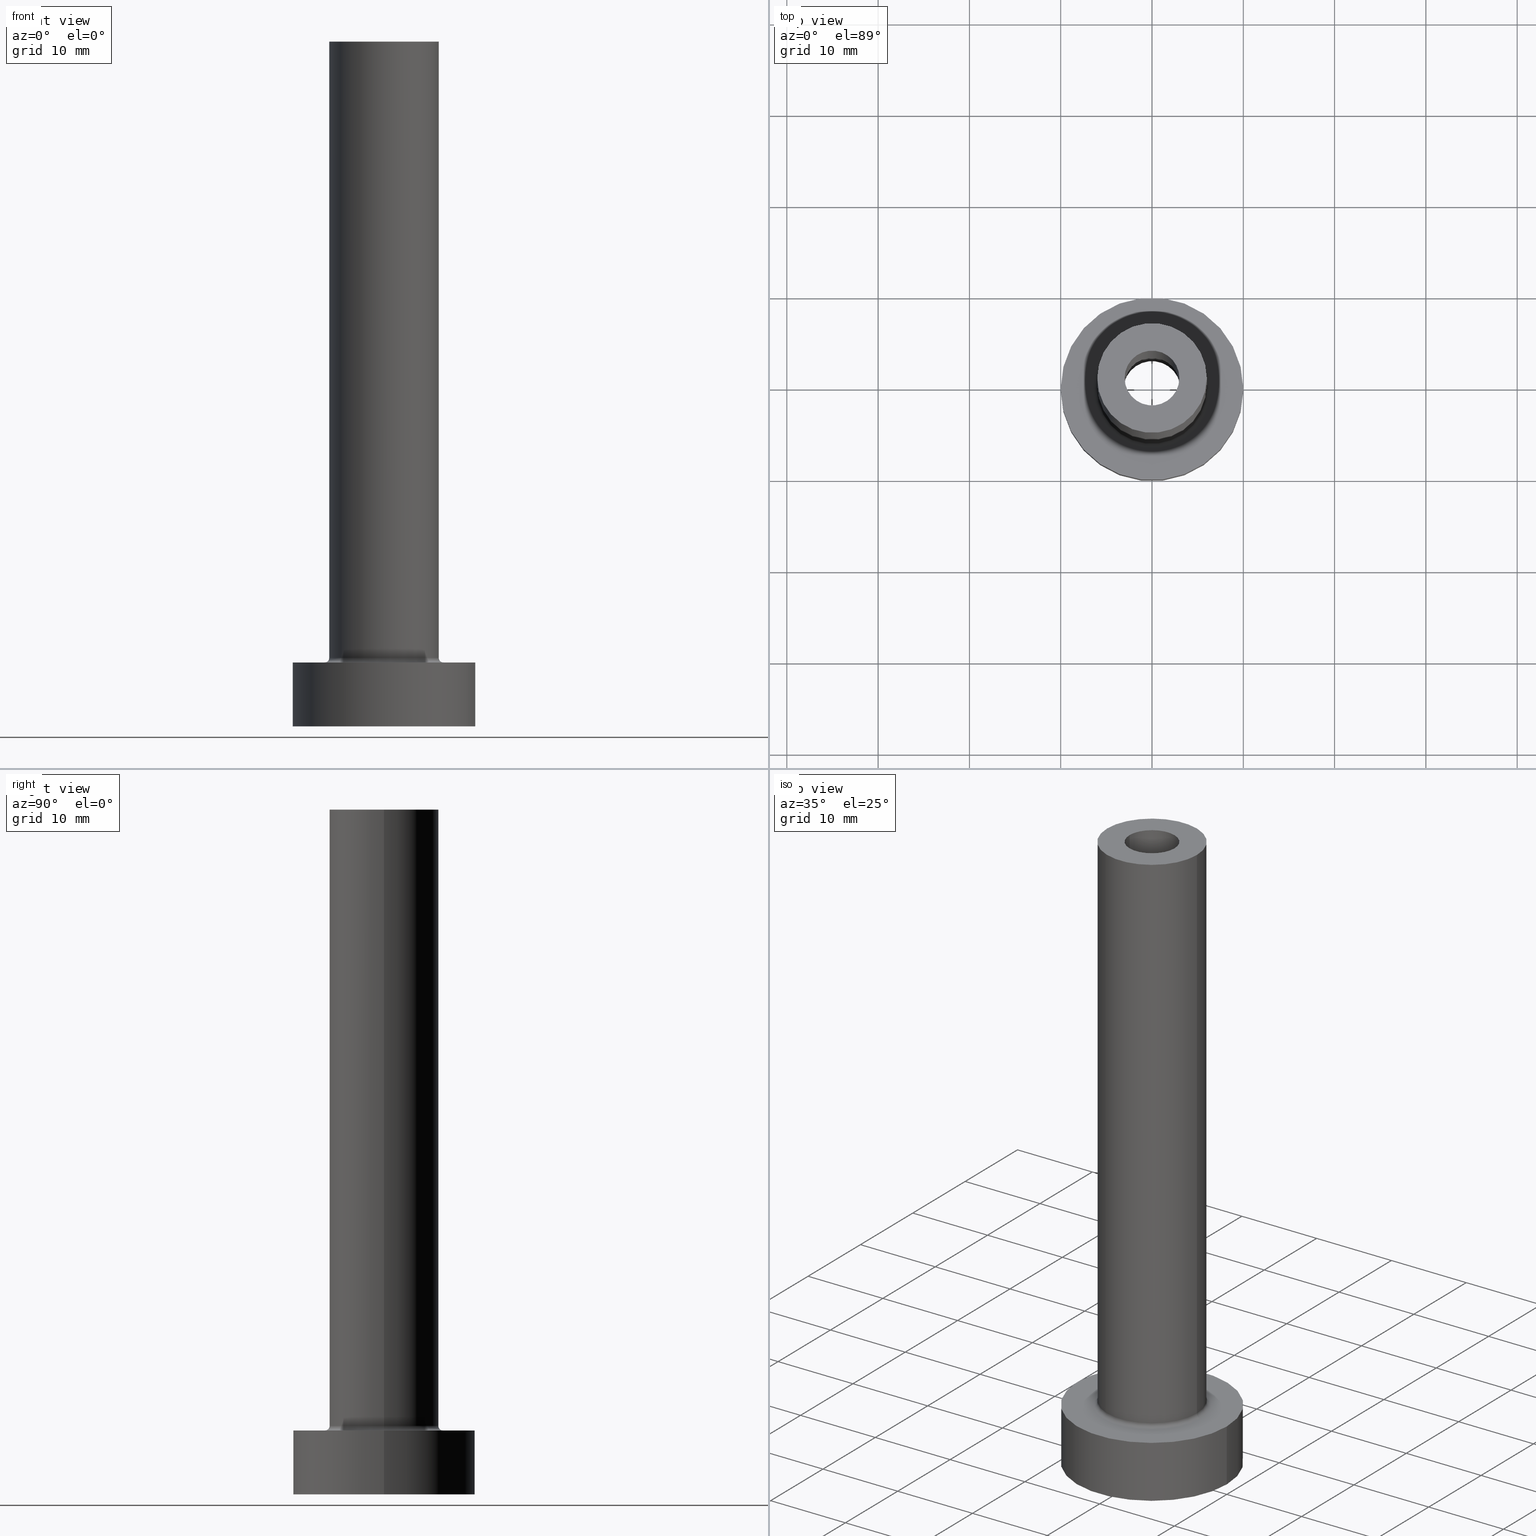
[diagram: canonical four-view strip — front | top / right | iso, engineering-drawing reading convention]
A machine part, canonical four-view strip (front | top / right | iso — engineering-drawing reading convention). The complete STEP part file that produces these views, byte-faithful:
ISO-10303-21;
HEADER;
FILE_DESCRIPTION (( 'STEP AP203' ),
    '1' );
FILE_NAME ('812e.STEP',
    '2023-02-13T15:03:09',
    ( '' ),
    ( '' ),
    'SwSTEP 2.0',
    'SolidWorks 2019',
    '' );
FILE_SCHEMA (( 'CONFIG_CONTROL_DESIGN' ));
ENDSEC;

DATA;
#1 = FACE_BOUND ( 'NONE', #125, .T. ) ;
#2 = APPLICATION_CONTEXT ( 'configuration controlled 3d designs of mechanical parts and assemblies' ) ;
#3 = ORIENTED_EDGE ( 'NONE', *, *, #172, .F. ) ;
#4 = CIRCLE ( 'NONE', #148, 3.000000000000000444 ) ;
#5 = PERSON_AND_ORGANIZATION ( #104, #113 ) ;
#6 = AXIS2_PLACEMENT_3D ( 'NONE', #185, #278, #353 ) ;
#7 = DIRECTION ( 'NONE',  ( 1.000000000000000000, 0.000000000000000000, 0.000000000000000000 ) ) ;
#8 = ORIENTED_EDGE ( 'NONE', *, *, #426, .F. ) ;
#9 = CARTESIAN_POINT ( 'NONE',  ( -3.000000000000000444, 0.000000000000000000, 75.00000000000001421 ) ) ;
#10 = VERTEX_POINT ( 'NONE', #452 ) ;
#11 = DIRECTION ( 'NONE',  ( 0.000000000000000000, 0.000000000000000000, 1.000000000000000000 ) ) ;
#12 = DIRECTION ( 'NONE',  ( 0.000000000000000000, 0.000000000000000000, -1.000000000000000000 ) ) ;
#13 = VERTEX_POINT ( 'NONE', #144 ) ;
#14 = CARTESIAN_POINT ( 'NONE',  ( 0.000000000000000000, 0.000000000000000000, 0.000000000000000000 ) ) ;
#15 = DIRECTION ( 'NONE',  ( 1.000000000000000000, 0.000000000000000000, 0.000000000000000000 ) ) ;
#16 = CARTESIAN_POINT ( 'NONE',  ( 0.000000000000000000, 0.000000000000000000, 30.00000000000001421 ) ) ;
#17 = AXIS2_PLACEMENT_3D ( 'NONE', #445, #27, #253 ) ;
#18 = CIRCLE ( 'NONE', #361, 3.150000000000000355 ) ;
#19 = CARTESIAN_POINT ( 'NONE',  ( 0.000000000000000000, 0.000000000000000000, 7.000000000000000000 ) ) ;
#20 = ORIENTED_EDGE ( 'NONE', *, *, #264, .T. ) ;
#21 = DIRECTION ( 'NONE',  ( 0.000000000000000000, 0.000000000000000000, 1.000000000000000000 ) ) ;
#22 = DIRECTION ( 'NONE',  ( -1.000000000000000000, 0.000000000000000000, 0.000000000000000000 ) ) ;
#23 = ADVANCED_FACE ( 'NONE', ( #421, #180 ), #105, .T. ) ;
#24 = PERSON_AND_ORGANIZATION ( #104, #113 ) ;
#25 = CIRCLE ( 'NONE', #429, 3.150000000000000355 ) ;
#26 = PERSON_AND_ORGANIZATION ( #104, #113 ) ;
#27 = DIRECTION ( 'NONE',  ( 0.000000000000000000, 0.000000000000000000, 1.000000000000000000 ) ) ;
#28 = ORIENTED_EDGE ( 'NONE', *, *, #197, .T. ) ;
#29 = CARTESIAN_POINT ( 'NONE',  ( 0.000000000000000000, 0.000000000000000000, 0.000000000000000000 ) ) ;
#30 = EDGE_CURVE ( 'NONE', #286, #57, #348, .T. ) ;
#31 = ORIENTED_EDGE ( 'NONE', *, *, #419, .F. ) ;
#32 = PERSON_AND_ORGANIZATION ( #104, #113 ) ;
#33 = AXIS2_PLACEMENT_3D ( 'NONE', #434, #365, #47 ) ;
#34 = CARTESIAN_POINT ( 'NONE',  ( 3.000000000000000444, 3.673940397442059868E-16, 75.00000000000001421 ) ) ;
#35 = EDGE_CURVE ( 'NONE', #40, #331, #147, .T. ) ;
#36 = ORIENTED_EDGE ( 'NONE', *, *, #76, .T. ) ;
#37 = CIRCLE ( 'NONE', #93, 6.500000000000000888 ) ;
#38 = DIRECTION ( 'NONE',  ( 0.000000000000000000, 0.000000000000000000, -1.000000000000000000 ) ) ;
#39 = CYLINDRICAL_SURFACE ( 'NONE', #6, 3.000000000000000444 ) ;
#40 = VERTEX_POINT ( 'NONE', #377 ) ;
#41 = AXIS2_PLACEMENT_3D ( 'NONE', #313, #310, #208 ) ;
#42 = APPROVAL ( #422, 'NEUR�EN�' ) ;
#43 = LOCAL_TIME ( 16, 3, 9.000000000000000000, #242 ) ;
#44 = DIRECTION ( 'NONE',  ( 0.000000000000000000, 0.000000000000000000, -1.000000000000000000 ) ) ;
#45 = DIRECTION ( 'NONE',  ( -0.000000000000000000, -0.000000000000000000, -1.000000000000000000 ) ) ;
#46 = ORIENTED_EDGE ( 'NONE', *, *, #68, .T. ) ;
#47 = DIRECTION ( 'NONE',  ( 1.000000000000000000, 0.000000000000000000, 0.000000000000000000 ) ) ;
#48 = ORIENTED_EDGE ( 'NONE', *, *, #106, .T. ) ;
#49 = VERTEX_POINT ( 'NONE', #62 ) ;
#50 = ADVANCED_FACE ( 'NONE', ( #206 ), #39, .F. ) ;
#51 = CARTESIAN_POINT ( 'NONE',  ( 0.000000000000000000, 0.000000000000000000, 0.000000000000000000 ) ) ;
#52 = VERTEX_POINT ( 'NONE', #116 ) ;
#53 = DIRECTION ( 'NONE',  ( 0.000000000000000000, 0.000000000000000000, 1.000000000000000000 ) ) ;
#54 = CARTESIAN_POINT ( 'NONE',  ( 0.000000000000000000, 0.000000000000000000, 75.00000000000001421 ) ) ;
#55 = DIRECTION ( 'NONE',  ( 1.000000000000000000, 0.000000000000000000, 0.000000000000000000 ) ) ;
#56 = CIRCLE ( 'NONE', #33, 3.150000000000000355 ) ;
#57 = VERTEX_POINT ( 'NONE', #219 ) ;
#58 = CC_DESIGN_APPROVAL ( #42, ( #100 ) ) ;
#59 = CARTESIAN_POINT ( 'NONE',  ( 6.000000000000000888, 7.347880794884120722E-16, 75.00000000000001421 ) ) ;
#60 = ORIENTED_EDGE ( 'NONE', *, *, #302, .T. ) ;
#61 = APPROVAL_ROLE ( '' ) ;
#62 = CARTESIAN_POINT ( 'NONE',  ( -10.00000000000000000, 0.000000000000000000, 7.000000000000000000 ) ) ;
#63 = TOROIDAL_SURFACE ( 'NONE', #132, 6.500000000000000888, 0.5000000000000000000 ) ;
#64 = CARTESIAN_POINT ( 'NONE',  ( 0.000000000000000000, 0.000000000000000000, 75.00000000000001421 ) ) ;
#65 = SHAPE_DEFINITION_REPRESENTATION ( #216, #187 ) ;
#66 = CC_DESIGN_SECURITY_CLASSIFICATION ( #100, ( #304 ) ) ;
#67 = VECTOR ( 'NONE', #455, 1000.000000000000000 ) ;
#68 = EDGE_CURVE ( 'NONE', #358, #286, #372, .T. ) ;
#69 = CARTESIAN_POINT ( 'NONE',  ( -3.150000000000000355, 0.000000000000000000, 30.00000000000001421 ) ) ;
#70 = DATE_TIME_ROLE ( 'creation_date' ) ;
#71 = ADVANCED_FACE ( 'NONE', ( #215, #356 ), #222, .F. ) ;
#72 = AXIS2_PLACEMENT_3D ( 'NONE', #14, #330, #193 ) ;
#73 = EDGE_LOOP ( 'NONE', ( #48, #303 ) ) ;
#74 = DIRECTION ( 'NONE',  ( 1.000000000000000000, 0.000000000000000000, 0.000000000000000000 ) ) ;
#75 = AXIS2_PLACEMENT_3D ( 'NONE', #254, #12, #84 ) ;
#76 = EDGE_CURVE ( 'NONE', #49, #40, #211, .T. ) ;
#77 = ORIENTED_EDGE ( 'NONE', *, *, #152, .F. ) ;
#78 = EDGE_CURVE ( 'NONE', #286, #358, #380, .T. ) ;
#79 = ORIENTED_EDGE ( 'NONE', *, *, #172, .T. ) ;
#80 = DIRECTION ( 'NONE',  ( -1.000000000000000000, 0.000000000000000000, 0.000000000000000000 ) ) ;
#81 = CARTESIAN_POINT ( 'NONE',  ( 6.000000000000000888, 7.347880794884120722E-16, 75.00000000000001421 ) ) ;
#82 = VERTEX_POINT ( 'NONE', #432 ) ;
#83 = AXIS2_PLACEMENT_3D ( 'NONE', #229, #192, #252 ) ;
#84 = DIRECTION ( 'NONE',  ( -1.000000000000000000, 0.000000000000000000, 0.000000000000000000 ) ) ;
#85 = LINE ( 'NONE', #367, #370 ) ;
#86 = PRODUCT_DEFINITION ( 'NEZN�M�', '', #304, #309 ) ;
#87 = CARTESIAN_POINT ( 'NONE',  ( -10.00000000000000000, 0.000000000000000000, 0.000000000000000000 ) ) ;
#88 = CARTESIAN_POINT ( 'NONE',  ( 6.500000000000000888, 0.000000000000000000, 7.000000000000002665 ) ) ;
#89 = EDGE_CURVE ( 'NONE', #13, #82, #114, .T. ) ;
#90 = DIRECTION ( 'NONE',  ( 1.000000000000000000, 0.000000000000000000, 0.000000000000000000 ) ) ;
#91 = DIRECTION ( 'NONE',  ( -0.000000000000000000, -0.000000000000000000, -1.000000000000000000 ) ) ;
#92 = CIRCLE ( 'NONE', #97, 6.000000000000000888 ) ;
#93 = AXIS2_PLACEMENT_3D ( 'NONE', #442, #374, #15 ) ;
#94 =( NAMED_UNIT ( * ) PLANE_ANGLE_UNIT ( ) SI_UNIT ( $, .RADIAN. ) );
#95 =( LENGTH_UNIT ( ) NAMED_UNIT ( * ) SI_UNIT ( .MILLI., .METRE. ) );
#96 = PERSON_AND_ORGANIZATION ( #104, #113 ) ;
#97 = AXIS2_PLACEMENT_3D ( 'NONE', #231, #53, #337 ) ;
#98 = DIRECTION ( 'NONE',  ( -0.000000000000000000, -0.000000000000000000, -1.000000000000000000 ) ) ;
#99 = APPROVAL_DATE_TIME ( #240, #42 ) ;
#100 = SECURITY_CLASSIFICATION ( '', '', #379 ) ;
#101 = ORIENTED_EDGE ( 'NONE', *, *, #203, .F. ) ;
#102 = EDGE_CURVE ( 'NONE', #316, #331, #362, .T. ) ;
#103 = DATE_AND_TIME ( #417, #124 ) ;
#104 = PERSON ( 'NEUR�EN�', 'NEUR�EN�', 'NEUR�EN�', ('NEUR�EN�'), ('NEUR�EN�'), ('NEUR�EN�') ) ;
#105 = PLANE ( 'NONE',  #271 ) ;
#106 = EDGE_CURVE ( 'NONE', #270, #10, #387, .T. ) ;
#107 = VECTOR ( 'NONE', #165, 1000.000000000000000 ) ;
#108 = APPROVAL_PERSON_ORGANIZATION ( #5, #394, #121 ) ;
#109 = AXIS2_PLACEMENT_3D ( 'NONE', #287, #224, #295 ) ;
#110 = ADVANCED_FACE ( 'NONE', ( #368 ), #439, .T. ) ;
#111 = DIRECTION ( 'NONE',  ( -1.000000000000000000, 1.224646799147351482E-16, 0.000000000000000000 ) ) ;
#112 = CARTESIAN_POINT ( 'NONE',  ( 0.000000000000000000, 0.000000000000000000, 7.000000000000000000 ) ) ;
#113 = ORGANIZATION ( 'NEUR�EN�', 'NEUR�EN�', '' ) ;
#114 = CIRCLE ( 'NONE', #325, 6.000000000000000888 ) ;
#115 = ORIENTED_EDGE ( 'NONE', *, *, #35, .F. ) ;
#116 = CARTESIAN_POINT ( 'NONE',  ( 3.150000000000000355, 3.857637417314163182E-16, 0.000000000000000000 ) ) ;
#117 = DIRECTION ( 'NONE',  ( -0.000000000000000000, -0.000000000000000000, -1.000000000000000000 ) ) ;
#118 = EDGE_CURVE ( 'NONE', #82, #270, #265, .T. ) ;
#119 = CARTESIAN_POINT ( 'NONE',  ( 6.500000000000000888, 0.000000000000000000, 7.500000000000007105 ) ) ;
#120 = ORIENTED_EDGE ( 'NONE', *, *, #302, .F. ) ;
#121 = APPROVAL_ROLE ( '' ) ;
#122 = CYLINDRICAL_SURFACE ( 'NONE', #141, 10.00000000000000000 ) ;
#123 = CIRCLE ( 'NONE', #183, 0.5000000000000004441 ) ;
#124 = LOCAL_TIME ( 16, 3, 9.000000000000000000, #415 ) ;
#125 = EDGE_LOOP ( 'NONE', ( #339, #334 ) ) ;
#126 = CARTESIAN_POINT ( 'NONE',  ( 3.150000000000000355, 3.857637417314163182E-16, 30.00000000000001421 ) ) ;
#127 = CARTESIAN_POINT ( 'NONE',  ( 0.000000000000000000, 0.000000000000000000, 0.000000000000000000 ) ) ;
#128 = DIRECTION ( 'NONE',  ( -1.000000000000000000, 0.000000000000000000, 0.000000000000000000 ) ) ;
#129 = DIRECTION ( 'NONE',  ( 1.000000000000000000, 0.000000000000000000, 0.000000000000000000 ) ) ;
#130 = ORIENTED_EDGE ( 'NONE', *, *, #243, .T. ) ;
#131 = VERTEX_POINT ( 'NONE', #59 ) ;
#132 = AXIS2_PLACEMENT_3D ( 'NONE', #405, #256, #129 ) ;
#133 = APPROVAL_PERSON_ORGANIZATION ( #24, #292, #61 ) ;
#134 = AXIS2_PLACEMENT_3D ( 'NONE', #51, #160, #263 ) ;
#135 = DIRECTION ( 'NONE',  ( 1.000000000000000000, 0.000000000000000000, -0.000000000000000000 ) ) ;
#136 = APPROVAL_DATE_TIME ( #239, #394 ) ;
#137 = EDGE_CURVE ( 'NONE', #358, #214, #196, .T. ) ;
#138 = ADVANCED_FACE ( 'NONE', ( #289 ), #363, .F. ) ;
#139 = APPROVAL_ROLE ( '' ) ;
#140 = EDGE_LOOP ( 'NONE', ( #3, #246, #130, #308 ) ) ;
#141 = AXIS2_PLACEMENT_3D ( 'NONE', #112, #460, #391 ) ;
#142 = VECTOR ( 'NONE', #274, 1000.000000000000000 ) ;
#143 = AXIS2_PLACEMENT_3D ( 'NONE', #155, #311, #74 ) ;
#144 = CARTESIAN_POINT ( 'NONE',  ( -6.000000000000000888, 0.000000000000000000, 7.500000000000007105 ) ) ;
#145 = MANIFOLD_SOLID_BREP ( 'Odebrat vysunut�m4', #290 ) ;
#146 = EDGE_LOOP ( 'NONE', ( #320, #164, #28, #332 ) ) ;
#147 = LINE ( 'NONE', #267, #410 ) ;
#148 = AXIS2_PLACEMENT_3D ( 'NONE', #16, #294, #55 ) ;
#149 = DIRECTION ( 'NONE',  ( 1.000000000000000000, 0.000000000000000000, -0.000000000000000000 ) ) ;
#150 = EDGE_CURVE ( 'NONE', #52, #178, #18, .T. ) ;
#151 = CARTESIAN_POINT ( 'NONE',  ( 0.000000000000000000, 0.000000000000000000, 38.90954544295051676 ) ) ;
#152 = EDGE_CURVE ( 'NONE', #281, #225, #451, .T. ) ;
#153 = CIRCLE ( 'NONE', #223, 10.00000000000000000 ) ;
#154 = ORIENTED_EDGE ( 'NONE', *, *, #264, .F. ) ;
#155 = CARTESIAN_POINT ( 'NONE',  ( 0.000000000000000000, 0.000000000000000000, 75.00000000000001421 ) ) ;
#156 = EDGE_LOOP ( 'NONE', ( #418, #221, #255, #364 ) ) ;
#157 = EDGE_CURVE ( 'NONE', #381, #131, #249, .T. ) ;
#158 = DIRECTION ( 'NONE',  ( 1.000000000000000000, 0.000000000000000000, 0.000000000000000000 ) ) ;
#159 = EDGE_LOOP ( 'NONE', ( #233, #450, #169, #154 ) ) ;
#160 = DIRECTION ( 'NONE',  ( 0.000000000000000000, 0.000000000000000000, 1.000000000000000000 ) ) ;
#161 = CARTESIAN_POINT ( 'NONE',  ( -3.000000000000000444, 0.000000000000000000, 75.00000000000001421 ) ) ;
#162 = PRODUCT_RELATED_PRODUCT_CATEGORY ( 'detail', '', ( #181 ) ) ;
#163 = AXIS2_PLACEMENT_3D ( 'NONE', #324, #351, #184 ) ;
#164 = ORIENTED_EDGE ( 'NONE', *, *, #35, .T. ) ;
#165 = DIRECTION ( 'NONE',  ( 0.000000000000000000, 0.000000000000000000, -1.000000000000000000 ) ) ;
#166 = EDGE_CURVE ( 'NONE', #281, #52, #435, .T. ) ;
#167 = DIRECTION ( 'NONE',  ( 1.000000000000000000, 0.000000000000000000, 0.000000000000000000 ) ) ;
#168 = AXIS2_PLACEMENT_3D ( 'NONE', #425, #38, #393 ) ;
#169 = ORIENTED_EDGE ( 'NONE', *, *, #137, .T. ) ;
#170 = CALENDAR_DATE ( 2023, 13, 2 ) ;
#171 = COORDINATED_UNIVERSAL_TIME_OFFSET ( 1, 0, .AHEAD. ) ;
#172 = EDGE_CURVE ( 'NONE', #131, #82, #235, .T. ) ;
#173 = LINE ( 'NONE', #307, #142 ) ;
#174 = DATE_TIME_ROLE ( 'classification_date' ) ;
#175 = ADVANCED_FACE ( 'NONE', ( #371 ), #122, .T. ) ;
#176 = AXIS2_PLACEMENT_3D ( 'NONE', #19, #259, #128 ) ;
#177 = LOCAL_TIME ( 16, 3, 9.000000000000000000, #448 ) ;
#178 = VERTEX_POINT ( 'NONE', #345 ) ;
#179 = ORIENTED_EDGE ( 'NONE', *, *, #197, .F. ) ;
#180 = FACE_OUTER_BOUND ( 'NONE', #401, .T. ) ;
#181 = PRODUCT ( '812e', '812e', '', ( #390 ) ) ;
#182 = PLANE ( 'NONE',  #41 ) ;
#183 = AXIS2_PLACEMENT_3D ( 'NONE', #257, #427, #111 ) ;
#184 = DIRECTION ( 'NONE',  ( 1.000000000000000000, 0.000000000000000000, 0.000000000000000000 ) ) ;
#185 = CARTESIAN_POINT ( 'NONE',  ( 0.000000000000000000, 0.000000000000000000, 75.00000000000001421 ) ) ;
#186 = CARTESIAN_POINT ( 'NONE',  ( 0.000000000000000000, 0.000000000000000000, 0.000000000000000000 ) ) ;
#187 = ADVANCED_BREP_SHAPE_REPRESENTATION ( '812e', ( #145, #163 ), #323 ) ;
#188 = ORIENTED_EDGE ( 'NONE', *, *, #30, .T. ) ;
#189 = ADVANCED_FACE ( 'NONE', ( #416 ), #217, .F. ) ;
#190 = DIRECTION ( 'NONE',  ( 0.000000000000000000, 0.000000000000000000, 1.000000000000000000 ) ) ;
#191 = ORIENTED_EDGE ( 'NONE', *, *, #157, .T. ) ;
#192 = DIRECTION ( 'NONE',  ( 0.000000000000000000, 0.000000000000000000, 1.000000000000000000 ) ) ;
#193 = DIRECTION ( 'NONE',  ( 1.000000000000000000, 0.000000000000000000, -0.000000000000000000 ) ) ;
#194 = ORIENTED_EDGE ( 'NONE', *, *, #102, .F. ) ;
#195 = CC_DESIGN_PERSON_AND_ORGANIZATION_ASSIGNMENT ( #26, #382, ( #100 ) ) ;
#196 = LINE ( 'NONE', #161, #385 ) ;
#197 = EDGE_CURVE ( 'NONE', #331, #316, #153, .T. ) ;
#198 = CARTESIAN_POINT ( 'NONE',  ( 0.000000000000000000, 0.000000000000000000, 7.000000000000000000 ) ) ;
#199 = AXIS2_PLACEMENT_3D ( 'NONE', #366, #328, #250 ) ;
#200 = ORIENTED_EDGE ( 'NONE', *, *, #76, .F. ) ;
#201 = DIRECTION ( 'NONE',  ( 0.000000000000000000, 0.000000000000000000, -1.000000000000000000 ) ) ;
#202 = CARTESIAN_POINT ( 'NONE',  ( 0.000000000000000000, 0.000000000000000000, 75.00000000000001421 ) ) ;
#203 = EDGE_CURVE ( 'NONE', #178, #52, #25, .T. ) ;
#204 = CALENDAR_DATE ( 2023, 13, 2 ) ;
#205 = DIRECTION ( 'NONE',  ( 0.000000000000000000, 0.000000000000000000, -1.000000000000000000 ) ) ;
#206 = FACE_OUTER_BOUND ( 'NONE', #386, .T. ) ;
#207 = PERSON_AND_ORGANIZATION ( #104, #113 ) ;
#208 = DIRECTION ( 'NONE',  ( 1.000000000000000000, 0.000000000000000000, -0.000000000000000000 ) ) ;
#209 = AXIS2_PLACEMENT_3D ( 'NONE', #54, #398, #338 ) ;
#210 = LOCAL_TIME ( 16, 3, 9.000000000000000000, #171 ) ;
#211 = CIRCLE ( 'NONE', #266, 10.00000000000000000 ) ;
#212 = ORIENTED_EDGE ( 'NONE', *, *, #118, .T. ) ;
#213 = CARTESIAN_POINT ( 'NONE',  ( -6.000000000000000888, 0.000000000000000000, 75.00000000000001421 ) ) ;
#214 = VERTEX_POINT ( 'NONE', #428 ) ;
#215 = FACE_BOUND ( 'NONE', #349, .T. ) ;
#216 = PRODUCT_DEFINITION_SHAPE ( 'NONE', 'NONE',  #86 ) ;
#217 = CYLINDRICAL_SURFACE ( 'NONE', #168, 3.000000000000000444 ) ;
#218 = AXIS2_PLACEMENT_3D ( 'NONE', #119, #407, #201 ) ;
#219 = CARTESIAN_POINT ( 'NONE',  ( 3.000000000000000444, 3.673940397442059868E-16, 30.00000000000001421 ) ) ;
#220 = ORIENTED_EDGE ( 'NONE', *, *, #118, .F. ) ;
#221 = ORIENTED_EDGE ( 'NONE', *, *, #152, .T. ) ;
#222 = PLANE ( 'NONE',  #72 ) ;
#223 = AXIS2_PLACEMENT_3D ( 'NONE', #29, #388, #317 ) ;
#224 = DIRECTION ( 'NONE',  ( 0.000000000000000000, 0.000000000000000000, 1.000000000000000000 ) ) ;
#225 = VERTEX_POINT ( 'NONE', #69 ) ;
#226 = AXIS2_PLACEMENT_3D ( 'NONE', #198, #333, #167 ) ;
#227 = ORIENTED_EDGE ( 'NONE', *, *, #456, .F. ) ;
#228 = CARTESIAN_POINT ( 'NONE',  ( 0.000000000000000000, 0.000000000000000000, 30.00000000000001421 ) ) ;
#229 = CARTESIAN_POINT ( 'NONE',  ( 0.000000000000000000, 0.000000000000000000, 75.00000000000001421 ) ) ;
#230 = ADVANCED_FACE ( 'NONE', ( #1, #414 ), #378, .T. ) ;
#231 = CARTESIAN_POINT ( 'NONE',  ( 0.000000000000000000, 0.000000000000000000, 7.500000000000007105 ) ) ;
#232 = DIRECTION ( 'NONE',  ( 1.000000000000000000, 0.000000000000000000, 0.000000000000000000 ) ) ;
#233 = ORIENTED_EDGE ( 'NONE', *, *, #30, .F. ) ;
#234 = ADVANCED_FACE ( 'NONE', ( #447, #269 ), #182, .F. ) ;
#235 = LINE ( 'NONE', #81, #336 ) ;
#236 = AXIS2_PLACEMENT_3D ( 'NONE', #64, #301, #149 ) ;
#237 = FACE_OUTER_BOUND ( 'NONE', #140, .T. ) ;
#238 = EDGE_LOOP ( 'NONE', ( #31, #8, #212, #227 ) ) ;
#239 = DATE_AND_TIME ( #170, #297 ) ;
#240 = DATE_AND_TIME ( #384, #177 ) ;
#241 = CC_DESIGN_PERSON_AND_ORGANIZATION_ASSIGNMENT ( #272, #446, ( #304 ) ) ;
#242 = COORDINATED_UNIVERSAL_TIME_OFFSET ( 1, 0, .AHEAD. ) ;
#243 = EDGE_CURVE ( 'NONE', #381, #13, #458, .T. ) ;
#244 = CARTESIAN_POINT ( 'NONE',  ( 0.000000000000000000, 0.000000000000000000, 7.000000000000000000 ) ) ;
#245 = FACE_OUTER_BOUND ( 'NONE', #305, .T. ) ;
#246 = ORIENTED_EDGE ( 'NONE', *, *, #157, .F. ) ;
#247 = EDGE_LOOP ( 'NONE', ( #191, #347 ) ) ;
#248 = EDGE_CURVE ( 'NONE', #131, #381, #409, .T. ) ;
#249 = CIRCLE ( 'NONE', #209, 6.000000000000000888 ) ;
#250 = DIRECTION ( 'NONE',  ( 1.000000000000000000, 0.000000000000000000, 0.000000000000000000 ) ) ;
#251 = ORIENTED_EDGE ( 'NONE', *, *, #150, .F. ) ;
#252 = DIRECTION ( 'NONE',  ( 1.000000000000000000, 0.000000000000000000, 0.000000000000000000 ) ) ;
#253 = DIRECTION ( 'NONE',  ( 1.000000000000000000, 0.000000000000000000, 0.000000000000000000 ) ) ;
#254 = CARTESIAN_POINT ( 'NONE',  ( 0.000000000000000000, 0.000000000000000000, 38.90954544295051676 ) ) ;
#255 = ORIENTED_EDGE ( 'NONE', *, *, #453, .T. ) ;
#256 = DIRECTION ( 'NONE',  ( 0.000000000000000000, 0.000000000000000000, 1.000000000000000000 ) ) ;
#257 = CARTESIAN_POINT ( 'NONE',  ( -6.500000000000000888, 7.960204194457796463E-16, 7.500000000000007105 ) ) ;
#258 = AXIS2_PLACEMENT_3D ( 'NONE', #228, #21, #90 ) ;
#259 = DIRECTION ( 'NONE',  ( -0.000000000000000000, -0.000000000000000000, -1.000000000000000000 ) ) ;
#260 = CC_DESIGN_APPROVAL ( #394, ( #86 ) ) ;
#261 = APPLICATION_PROTOCOL_DEFINITION ( 'international standard', 'config_control_design', 1994, #440 ) ;
#262 = ORIENTED_EDGE ( 'NONE', *, *, #89, .F. ) ;
#263 = DIRECTION ( 'NONE',  ( 1.000000000000000000, 0.000000000000000000, 0.000000000000000000 ) ) ;
#264 = EDGE_CURVE ( 'NONE', #57, #214, #288, .T. ) ;
#265 = CIRCLE ( 'NONE', #218, 0.5000000000000004441 ) ;
#266 = AXIS2_PLACEMENT_3D ( 'NONE', #437, #340, #232 ) ;
#267 = CARTESIAN_POINT ( 'NONE',  ( 10.00000000000000000, 1.224646799147353256E-15, 7.000000000000000000 ) ) ;
#268 = DATE_AND_TIME ( #204, #43 ) ;
#269 = FACE_OUTER_BOUND ( 'NONE', #433, .T. ) ;
#270 = VERTEX_POINT ( 'NONE', #88 ) ;
#271 = AXIS2_PLACEMENT_3D ( 'NONE', #244, #383, #135 ) ;
#272 = PERSON_AND_ORGANIZATION ( #104, #113 ) ;
#273 = PERSON_AND_ORGANIZATION ( #104, #113 ) ;
#274 = DIRECTION ( 'NONE',  ( -0.000000000000000000, -0.000000000000000000, -1.000000000000000000 ) ) ;
#275 = EDGE_CURVE ( 'NONE', #40, #49, #344, .T. ) ;
#276 = EDGE_LOOP ( 'NONE', ( #457, #352, #408, #300 ) ) ;
#277 = VECTOR ( 'NONE', #430, 1000.000000000000000 ) ;
#278 = DIRECTION ( 'NONE',  ( 0.000000000000000000, 0.000000000000000000, -1.000000000000000000 ) ) ;
#279 = TOROIDAL_SURFACE ( 'NONE', #17, 6.500000000000000888, 0.5000000000000000000 ) ;
#280 = CYLINDRICAL_SURFACE ( 'NONE', #312, 3.150000000000000355 ) ;
#281 = VERTEX_POINT ( 'NONE', #126 ) ;
#282 = ORIENTED_EDGE ( 'NONE', *, *, #426, .T. ) ;
#283 = FACE_OUTER_BOUND ( 'NONE', #238, .T. ) ;
#284 = CARTESIAN_POINT ( 'NONE',  ( 3.150000000000000355, 3.857637417314163182E-16, 38.90954544295051676 ) ) ;
#285 = ORIENTED_EDGE ( 'NONE', *, *, #360, .F. ) ;
#286 = VERTEX_POINT ( 'NONE', #403 ) ;
#287 = CARTESIAN_POINT ( 'NONE',  ( 0.000000000000000000, 0.000000000000000000, 75.00000000000001421 ) ) ;
#288 = CIRCLE ( 'NONE', #392, 3.000000000000000444 ) ;
#289 = FACE_OUTER_BOUND ( 'NONE', #156, .T. ) ;
#290 = CLOSED_SHELL ( 'NONE', ( #50, #396, #389, #443, #110, #175, #23, #71, #346, #230, #315, #138, #234, #189 ) ) ;
#291 = CC_DESIGN_APPROVAL ( #292, ( #304 ) ) ;
#292 = APPROVAL ( #444, 'NEUR�EN�' ) ;
#293 = EDGE_LOOP ( 'NONE', ( #115, #200, #397, #327 ) ) ;
#294 = DIRECTION ( 'NONE',  ( 0.000000000000000000, 0.000000000000000000, 1.000000000000000000 ) ) ;
#295 = DIRECTION ( 'NONE',  ( 1.000000000000000000, 0.000000000000000000, 0.000000000000000000 ) ) ;
#296 = FACE_OUTER_BOUND ( 'NONE', #441, .T. ) ;
#297 = LOCAL_TIME ( 16, 3, 9.000000000000000000, #461 ) ;
#298 = CC_DESIGN_PERSON_AND_ORGANIZATION_ASSIGNMENT ( #273, #299, ( #304 ) ) ;
#299 = PERSON_AND_ORGANIZATION_ROLE ( 'creator' ) ;
#300 = ORIENTED_EDGE ( 'NONE', *, *, #453, .F. ) ;
#301 = DIRECTION ( 'NONE',  ( 0.000000000000000000, 0.000000000000000000, 1.000000000000000000 ) ) ;
#302 = EDGE_CURVE ( 'NONE', #214, #57, #4, .T. ) ;
#303 = ORIENTED_EDGE ( 'NONE', *, *, #456, .T. ) ;
#304 = PRODUCT_DEFINITION_FORMATION_WITH_SPECIFIED_SOURCE ( 'LIBOVOLN�', '', #181, .NOT_KNOWN. ) ;
#305 = EDGE_LOOP ( 'NONE', ( #411, #79, #282, #423 ) ) ;
#306 = APPROVAL_DATE_TIME ( #103, #292 ) ;
#307 = CARTESIAN_POINT ( 'NONE',  ( -10.00000000000000000, 0.000000000000000000, 7.000000000000000000 ) ) ;
#308 = ORIENTED_EDGE ( 'NONE', *, *, #89, .T. ) ;
#309 = DESIGN_CONTEXT ( 'detailed design', #2, 'design' ) ;
#310 = DIRECTION ( 'NONE',  ( 0.000000000000000000, 0.000000000000000000, 1.000000000000000000 ) ) ;
#311 = DIRECTION ( 'NONE',  ( 0.000000000000000000, 0.000000000000000000, 1.000000000000000000 ) ) ;
#312 = AXIS2_PLACEMENT_3D ( 'NONE', #151, #44, #329 ) ;
#313 = CARTESIAN_POINT ( 'NONE',  ( 0.000000000000000000, 0.000000000000000000, 30.00000000000001421 ) ) ;
#314 = AXIS2_PLACEMENT_3D ( 'NONE', #202, #91, #22 ) ;
#315 = ADVANCED_FACE ( 'NONE', ( #283 ), #63, .F. ) ;
#316 = VERTEX_POINT ( 'NONE', #87 ) ;
#317 = DIRECTION ( 'NONE',  ( 1.000000000000000000, 0.000000000000000000, 0.000000000000000000 ) ) ;
#318 = PERSON_AND_ORGANIZATION_ROLE ( 'design_owner' ) ;
#319 = DIRECTION ( 'NONE',  ( 1.000000000000000000, 0.000000000000000000, 0.000000000000000000 ) ) ;
#320 = ORIENTED_EDGE ( 'NONE', *, *, #275, .F. ) ;
#321 = CC_DESIGN_DATE_AND_TIME_ASSIGNMENT ( #454, #174, ( #100 ) ) ;
#322 = CARTESIAN_POINT ( 'NONE',  ( 0.000000000000000000, 0.000000000000000000, 30.00000000000001421 ) ) ;
#323 =( GEOMETRIC_REPRESENTATION_CONTEXT ( 3 ) GLOBAL_UNCERTAINTY_ASSIGNED_CONTEXT ( ( #350 ) ) GLOBAL_UNIT_ASSIGNED_CONTEXT ( ( #95, #94, #412 ) ) REPRESENTATION_CONTEXT ( 'NONE', 'WORKASPACE' ) );
#324 = CARTESIAN_POINT ( 'NONE',  ( 0.000000000000000000, 0.000000000000000000, 0.000000000000000000 ) ) ;
#325 = AXIS2_PLACEMENT_3D ( 'NONE', #326, #190, #7 ) ;
#326 = CARTESIAN_POINT ( 'NONE',  ( 0.000000000000000000, 0.000000000000000000, 7.500000000000007105 ) ) ;
#327 = ORIENTED_EDGE ( 'NONE', *, *, #102, .T. ) ;
#328 = DIRECTION ( 'NONE',  ( 0.000000000000000000, 0.000000000000000000, 1.000000000000000000 ) ) ;
#329 = DIRECTION ( 'NONE',  ( -1.000000000000000000, 0.000000000000000000, 0.000000000000000000 ) ) ;
#330 = DIRECTION ( 'NONE',  ( 0.000000000000000000, 0.000000000000000000, 1.000000000000000000 ) ) ;
#331 = VERTEX_POINT ( 'NONE', #373 ) ;
#332 = ORIENTED_EDGE ( 'NONE', *, *, #438, .F. ) ;
#333 = DIRECTION ( 'NONE',  ( -0.000000000000000000, -0.000000000000000000, -1.000000000000000000 ) ) ;
#334 = ORIENTED_EDGE ( 'NONE', *, *, #78, .F. ) ;
#335 = DIRECTION ( 'NONE',  ( 1.000000000000000000, 0.000000000000000000, 0.000000000000000000 ) ) ;
#336 = VECTOR ( 'NONE', #45, 1000.000000000000000 ) ;
#337 = DIRECTION ( 'NONE',  ( 1.000000000000000000, 0.000000000000000000, 0.000000000000000000 ) ) ;
#338 = DIRECTION ( 'NONE',  ( 1.000000000000000000, 0.000000000000000000, 0.000000000000000000 ) ) ;
#339 = ORIENTED_EDGE ( 'NONE', *, *, #68, .F. ) ;
#340 = DIRECTION ( 'NONE',  ( 0.000000000000000000, 0.000000000000000000, 1.000000000000000000 ) ) ;
#341 = CYLINDRICAL_SURFACE ( 'NONE', #459, 6.000000000000000888 ) ;
#342 = ORIENTED_EDGE ( 'NONE', *, *, #106, .F. ) ;
#343 = PERSON_AND_ORGANIZATION_ROLE ( 'creator' ) ;
#344 = CIRCLE ( 'NONE', #199, 10.00000000000000000 ) ;
#345 = CARTESIAN_POINT ( 'NONE',  ( -3.150000000000000355, 0.000000000000000000, 0.000000000000000000 ) ) ;
#346 = ADVANCED_FACE ( 'NONE', ( #237 ), #341, .T. ) ;
#347 = ORIENTED_EDGE ( 'NONE', *, *, #248, .T. ) ;
#348 = LINE ( 'NONE', #34, #67 ) ;
#349 = EDGE_LOOP ( 'NONE', ( #101, #251 ) ) ;
#350 = UNCERTAINTY_MEASURE_WITH_UNIT (LENGTH_MEASURE( 1.000000000000000082E-05 ), #95, 'distance_accuracy_value', 'NONE');
#351 = DIRECTION ( 'NONE',  ( 0.000000000000000000, 0.000000000000000000, 1.000000000000000000 ) ) ;
#352 = ORIENTED_EDGE ( 'NONE', *, *, #166, .T. ) ;
#353 = DIRECTION ( 'NONE',  ( -1.000000000000000000, 0.000000000000000000, 0.000000000000000000 ) ) ;
#354 = APPROVAL_PERSON_ORGANIZATION ( #96, #42, #139 ) ;
#355 = ORIENTED_EDGE ( 'NONE', *, *, #275, .T. ) ;
#356 = FACE_OUTER_BOUND ( 'NONE', #395, .T. ) ;
#357 = CC_DESIGN_PERSON_AND_ORGANIZATION_ASSIGNMENT ( #207, #318, ( #181 ) ) ;
#358 = VERTEX_POINT ( 'NONE', #9 ) ;
#359 = ORIENTED_EDGE ( 'NONE', *, *, #419, .T. ) ;
#360 = EDGE_CURVE ( 'NONE', #225, #281, #56, .T. ) ;
#361 = AXIS2_PLACEMENT_3D ( 'NONE', #127, #404, #158 ) ;
#362 = CIRCLE ( 'NONE', #134, 10.00000000000000000 ) ;
#363 = CYLINDRICAL_SURFACE ( 'NONE', #75, 3.150000000000000355 ) ;
#364 = ORIENTED_EDGE ( 'NONE', *, *, #203, .T. ) ;
#365 = DIRECTION ( 'NONE',  ( 0.000000000000000000, 0.000000000000000000, 1.000000000000000000 ) ) ;
#366 = CARTESIAN_POINT ( 'NONE',  ( 0.000000000000000000, 0.000000000000000000, 7.000000000000000000 ) ) ;
#367 = CARTESIAN_POINT ( 'NONE',  ( -3.150000000000000355, 0.000000000000000000, 38.90954544295051676 ) ) ;
#368 = FACE_OUTER_BOUND ( 'NONE', #146, .T. ) ;
#369 = APPROVAL_STATUS ( 'not_yet_approved' ) ;
#370 = VECTOR ( 'NONE', #205, 1000.000000000000000 ) ;
#371 = FACE_OUTER_BOUND ( 'NONE', #293, .T. ) ;
#372 = CIRCLE ( 'NONE', #143, 3.000000000000000444 ) ;
#373 = CARTESIAN_POINT ( 'NONE',  ( 10.00000000000000000, 1.224646799147353256E-15, 0.000000000000000000 ) ) ;
#374 = DIRECTION ( 'NONE',  ( -0.000000000000000000, -0.000000000000000000, -1.000000000000000000 ) ) ;
#375 = CC_DESIGN_PERSON_AND_ORGANIZATION_ASSIGNMENT ( #32, #343, ( #86 ) ) ;
#376 = FACE_OUTER_BOUND ( 'NONE', #276, .T. ) ;
#377 = CARTESIAN_POINT ( 'NONE',  ( 10.00000000000000000, 1.224646799147353256E-15, 7.000000000000000000 ) ) ;
#378 = PLANE ( 'NONE',  #236 ) ;
#379 = SECURITY_CLASSIFICATION_LEVEL ( 'unclassified' ) ;
#380 = CIRCLE ( 'NONE', #109, 3.000000000000000444 ) ;
#381 = VERTEX_POINT ( 'NONE', #213 ) ;
#382 = PERSON_AND_ORGANIZATION_ROLE ( 'classification_officer' ) ;
#383 = DIRECTION ( 'NONE',  ( 0.000000000000000000, 0.000000000000000000, 1.000000000000000000 ) ) ;
#384 = CALENDAR_DATE ( 2023, 13, 2 ) ;
#385 = VECTOR ( 'NONE', #402, 1000.000000000000000 ) ;
#386 = EDGE_LOOP ( 'NONE', ( #46, #188, #120, #399 ) ) ;
#387 = CIRCLE ( 'NONE', #226, 6.500000000000000888 ) ;
#388 = DIRECTION ( 'NONE',  ( 0.000000000000000000, 0.000000000000000000, 1.000000000000000000 ) ) ;
#389 = ADVANCED_FACE ( 'NONE', ( #296 ), #279, .F. ) ;
#390 = MECHANICAL_CONTEXT ( 'NONE', #440, 'mechanical' ) ;
#391 = DIRECTION ( 'NONE',  ( -1.000000000000000000, 0.000000000000000000, 0.000000000000000000 ) ) ;
#392 = AXIS2_PLACEMENT_3D ( 'NONE', #322, #11, #335 ) ;
#393 = DIRECTION ( 'NONE',  ( -1.000000000000000000, 0.000000000000000000, 0.000000000000000000 ) ) ;
#394 = APPROVAL ( #369, 'NEUR�EN�' ) ;
#395 = EDGE_LOOP ( 'NONE', ( #194, #179 ) ) ;
#396 = ADVANCED_FACE ( 'NONE', ( #376 ), #280, .F. ) ;
#397 = ORIENTED_EDGE ( 'NONE', *, *, #438, .T. ) ;
#398 = DIRECTION ( 'NONE',  ( 0.000000000000000000, 0.000000000000000000, 1.000000000000000000 ) ) ;
#399 = ORIENTED_EDGE ( 'NONE', *, *, #137, .F. ) ;
#400 = APPLICATION_PROTOCOL_DEFINITION ( 'international standard', 'config_control_design', 1994, #2 ) ;
#401 = EDGE_LOOP ( 'NONE', ( #36, #355 ) ) ;
#402 = DIRECTION ( 'NONE',  ( 0.000000000000000000, 0.000000000000000000, -1.000000000000000000 ) ) ;
#403 = CARTESIAN_POINT ( 'NONE',  ( 3.000000000000000444, 3.673940397442059868E-16, 75.00000000000001421 ) ) ;
#404 = DIRECTION ( 'NONE',  ( -0.000000000000000000, -0.000000000000000000, -1.000000000000000000 ) ) ;
#405 = CARTESIAN_POINT ( 'NONE',  ( 0.000000000000000000, 0.000000000000000000, 7.500000000000007105 ) ) ;
#406 = CARTESIAN_POINT ( 'NONE',  ( -6.000000000000000888, 0.000000000000000000, 75.00000000000001421 ) ) ;
#407 = DIRECTION ( 'NONE',  ( 0.000000000000000000, -1.000000000000000000, 0.000000000000000000 ) ) ;
#408 = ORIENTED_EDGE ( 'NONE', *, *, #150, .T. ) ;
#409 = CIRCLE ( 'NONE', #83, 6.000000000000000888 ) ;
#410 = VECTOR ( 'NONE', #413, 1000.000000000000000 ) ;
#411 = ORIENTED_EDGE ( 'NONE', *, *, #248, .F. ) ;
#412 =( NAMED_UNIT ( * ) SI_UNIT ( $, .STERADIAN. ) SOLID_ANGLE_UNIT ( ) );
#413 = DIRECTION ( 'NONE',  ( -0.000000000000000000, -0.000000000000000000, -1.000000000000000000 ) ) ;
#414 = FACE_OUTER_BOUND ( 'NONE', #247, .T. ) ;
#415 = COORDINATED_UNIVERSAL_TIME_OFFSET ( 1, 0, .AHEAD. ) ;
#416 = FACE_OUTER_BOUND ( 'NONE', #159, .T. ) ;
#417 = CALENDAR_DATE ( 2023, 13, 2 ) ;
#418 = ORIENTED_EDGE ( 'NONE', *, *, #166, .F. ) ;
#419 = EDGE_CURVE ( 'NONE', #13, #10, #123, .T. ) ;
#420 = CALENDAR_DATE ( 2023, 13, 2 ) ;
#421 = FACE_BOUND ( 'NONE', #73, .T. ) ;
#422 = APPROVAL_STATUS ( 'not_yet_approved' ) ;
#423 = ORIENTED_EDGE ( 'NONE', *, *, #243, .F. ) ;
#424 = CYLINDRICAL_SURFACE ( 'NONE', #314, 6.000000000000000888 ) ;
#425 = CARTESIAN_POINT ( 'NONE',  ( 0.000000000000000000, 0.000000000000000000, 75.00000000000001421 ) ) ;
#426 = EDGE_CURVE ( 'NONE', #82, #13, #92, .T. ) ;
#427 = DIRECTION ( 'NONE',  ( 1.224646799147353207E-16, 1.000000000000000000, -0.000000000000000000 ) ) ;
#428 = CARTESIAN_POINT ( 'NONE',  ( -3.000000000000000444, 0.000000000000000000, 30.00000000000001421 ) ) ;
#429 = AXIS2_PLACEMENT_3D ( 'NONE', #186, #98, #319 ) ;
#430 = DIRECTION ( 'NONE',  ( -0.000000000000000000, -0.000000000000000000, -1.000000000000000000 ) ) ;
#431 = CARTESIAN_POINT ( 'NONE',  ( 0.000000000000000000, 0.000000000000000000, 75.00000000000001421 ) ) ;
#432 = CARTESIAN_POINT ( 'NONE',  ( 6.000000000000000888, 7.347880794884120722E-16, 7.500000000000007105 ) ) ;
#433 = EDGE_LOOP ( 'NONE', ( #285, #77 ) ) ;
#434 = CARTESIAN_POINT ( 'NONE',  ( 0.000000000000000000, 0.000000000000000000, 30.00000000000001421 ) ) ;
#435 = LINE ( 'NONE', #284, #107 ) ;
#436 = EDGE_LOOP ( 'NONE', ( #60, #20 ) ) ;
#437 = CARTESIAN_POINT ( 'NONE',  ( 0.000000000000000000, 0.000000000000000000, 7.000000000000000000 ) ) ;
#438 = EDGE_CURVE ( 'NONE', #49, #316, #173, .T. ) ;
#439 = CYLINDRICAL_SURFACE ( 'NONE', #176, 10.00000000000000000 ) ;
#440 = APPLICATION_CONTEXT ( 'configuration controlled 3d designs of mechanical parts and assemblies' ) ;
#441 = EDGE_LOOP ( 'NONE', ( #262, #359, #342, #220 ) ) ;
#442 = CARTESIAN_POINT ( 'NONE',  ( 0.000000000000000000, 0.000000000000000000, 7.000000000000000000 ) ) ;
#443 = ADVANCED_FACE ( 'NONE', ( #245 ), #424, .T. ) ;
#444 = APPROVAL_STATUS ( 'not_yet_approved' ) ;
#445 = CARTESIAN_POINT ( 'NONE',  ( 0.000000000000000000, 0.000000000000000000, 7.500000000000007105 ) ) ;
#446 = PERSON_AND_ORGANIZATION_ROLE ( 'design_supplier' ) ;
#447 = FACE_BOUND ( 'NONE', #436, .T. ) ;
#448 = COORDINATED_UNIVERSAL_TIME_OFFSET ( 1, 0, .AHEAD. ) ;
#449 = CC_DESIGN_DATE_AND_TIME_ASSIGNMENT ( #268, #70, ( #86 ) ) ;
#450 = ORIENTED_EDGE ( 'NONE', *, *, #78, .T. ) ;
#451 = CIRCLE ( 'NONE', #258, 3.150000000000000355 ) ;
#452 = CARTESIAN_POINT ( 'NONE',  ( -6.500000000000000888, 7.960204194457796463E-16, 7.000000000000002665 ) ) ;
#453 = EDGE_CURVE ( 'NONE', #225, #178, #85, .T. ) ;
#454 = DATE_AND_TIME ( #420, #210 ) ;
#455 = DIRECTION ( 'NONE',  ( 0.000000000000000000, 0.000000000000000000, -1.000000000000000000 ) ) ;
#456 = EDGE_CURVE ( 'NONE', #10, #270, #37, .T. ) ;
#457 = ORIENTED_EDGE ( 'NONE', *, *, #360, .T. ) ;
#458 = LINE ( 'NONE', #406, #277 ) ;
#459 = AXIS2_PLACEMENT_3D ( 'NONE', #431, #117, #80 ) ;
#460 = DIRECTION ( 'NONE',  ( -0.000000000000000000, -0.000000000000000000, -1.000000000000000000 ) ) ;
#461 = COORDINATED_UNIVERSAL_TIME_OFFSET ( 1, 0, .AHEAD. ) ;
ENDSEC;
END-ISO-10303-21;
